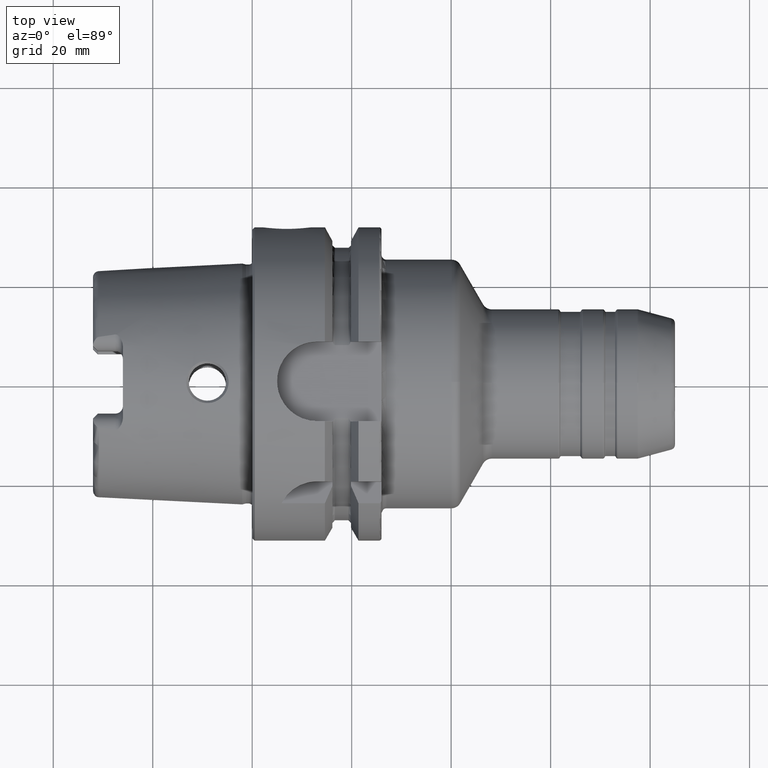
[diagram: clean part render]
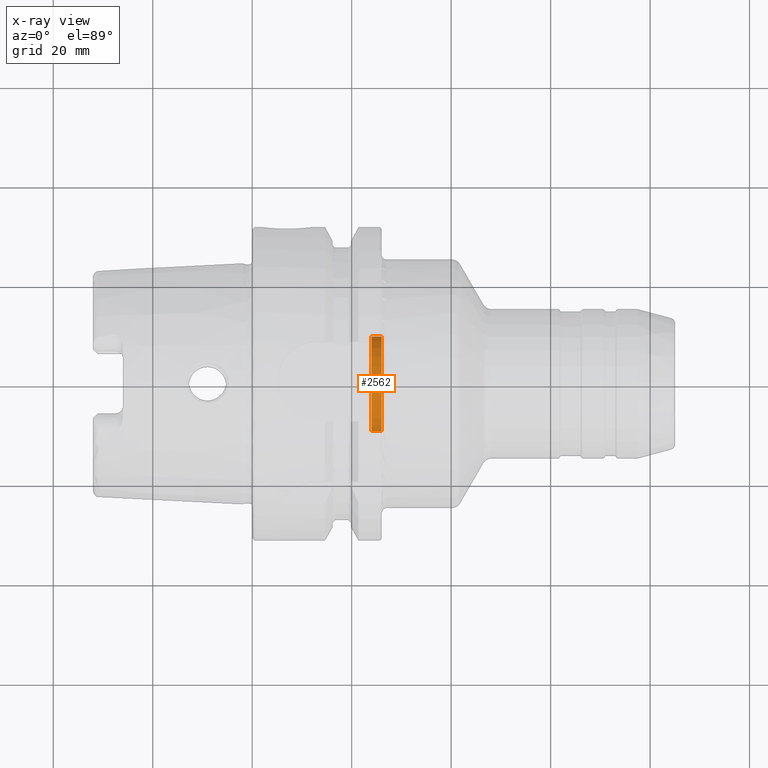
[diagram: x-ray — body ghosted, one internal face saturated and labeled with its STEP entity id]
A machine part, top view, then the same camera in x-ray: the body is ghosted and one INTERNAL B-rep face — a face not visible from any outside direction — is saturated and labeled: STEP entity #2562.
In plain terms, the highlighted cylindrical surface (bore or boss wall) has radius 9.5 mm, axis along (-1, 0, 0).
Its self-contained STEP definition (entity closure, byte-faithful):
#208=FACE_OUTER_BOUND('',#345,.T.);
#345=EDGE_LOOP('',(#1690,#1691,#1692,#1693,#1694,#1695));
#490=LINE('',#3975,#607);
#607=VECTOR('',#3121,9.5);
#730=CIRCLE('',#2727,9.5);
#731=CIRCLE('',#2728,9.5);
#732=CIRCLE('',#2730,9.5);
#733=CIRCLE('',#2731,9.5);
#958=VERTEX_POINT('',#3969);
#959=VERTEX_POINT('',#3970);
#960=VERTEX_POINT('',#3974);
#961=VERTEX_POINT('',#3976);
#1257=EDGE_CURVE('',#958,#959,#730,.T.);
#1258=EDGE_CURVE('',#959,#958,#731,.T.);
#1259=EDGE_CURVE('',#959,#960,#490,.T.);
#1260=EDGE_CURVE('',#960,#961,#732,.T.);
#1261=EDGE_CURVE('',#961,#960,#733,.T.);
#1690=ORIENTED_EDGE('',*,*,#1257,.F.);
#1691=ORIENTED_EDGE('',*,*,#1258,.F.);
#1692=ORIENTED_EDGE('',*,*,#1259,.T.);
#1693=ORIENTED_EDGE('',*,*,#1260,.T.);
#1694=ORIENTED_EDGE('',*,*,#1261,.T.);
#1695=ORIENTED_EDGE('',*,*,#1259,.F.);
#2522=CYLINDRICAL_SURFACE('',#2729,9.5);
#2562=ADVANCED_FACE('',(#208),#2522,.F.);
#2727=AXIS2_PLACEMENT_3D('',#3971,#3115,#3116);
#2728=AXIS2_PLACEMENT_3D('',#3972,#3117,#3118);
#2729=AXIS2_PLACEMENT_3D('',#3973,#3119,#3120);
#2730=AXIS2_PLACEMENT_3D('',#3977,#3122,#3123);
#2731=AXIS2_PLACEMENT_3D('',#3978,#3124,#3125);
#3115=DIRECTION('center_axis',(-1.,0.,0.));
#3116=DIRECTION('ref_axis',(0.,0.,1.));
#3117=DIRECTION('center_axis',(-1.,0.,0.));
#3118=DIRECTION('ref_axis',(0.,0.,1.));
#3119=DIRECTION('center_axis',(-1.,0.,0.));
#3120=DIRECTION('ref_axis',(0.,1.,0.));
#3121=DIRECTION('',(-1.,0.,0.));
#3122=DIRECTION('center_axis',(-1.,0.,0.));
#3123=DIRECTION('ref_axis',(0.,0.,1.));
#3124=DIRECTION('center_axis',(-1.,0.,0.));
#3125=DIRECTION('ref_axis',(0.,0.,1.));
#3969=CARTESIAN_POINT('',(26.,9.5,0.));
#3970=CARTESIAN_POINT('',(26.,-9.5,1.16341445918999E-15));
#3971=CARTESIAN_POINT('Origin',(26.,0.,0.));
#3972=CARTESIAN_POINT('Origin',(26.,0.,0.));
#3973=CARTESIAN_POINT('Origin',(25.,0.,0.));
#3974=CARTESIAN_POINT('',(24.,-9.5,1.16341445918999E-15));
#3975=CARTESIAN_POINT('',(25.,-9.5,1.16341445918999E-15));
#3976=CARTESIAN_POINT('',(24.,9.5,0.));
#3977=CARTESIAN_POINT('Origin',(24.,0.,0.));
#3978=CARTESIAN_POINT('Origin',(24.,0.,0.));